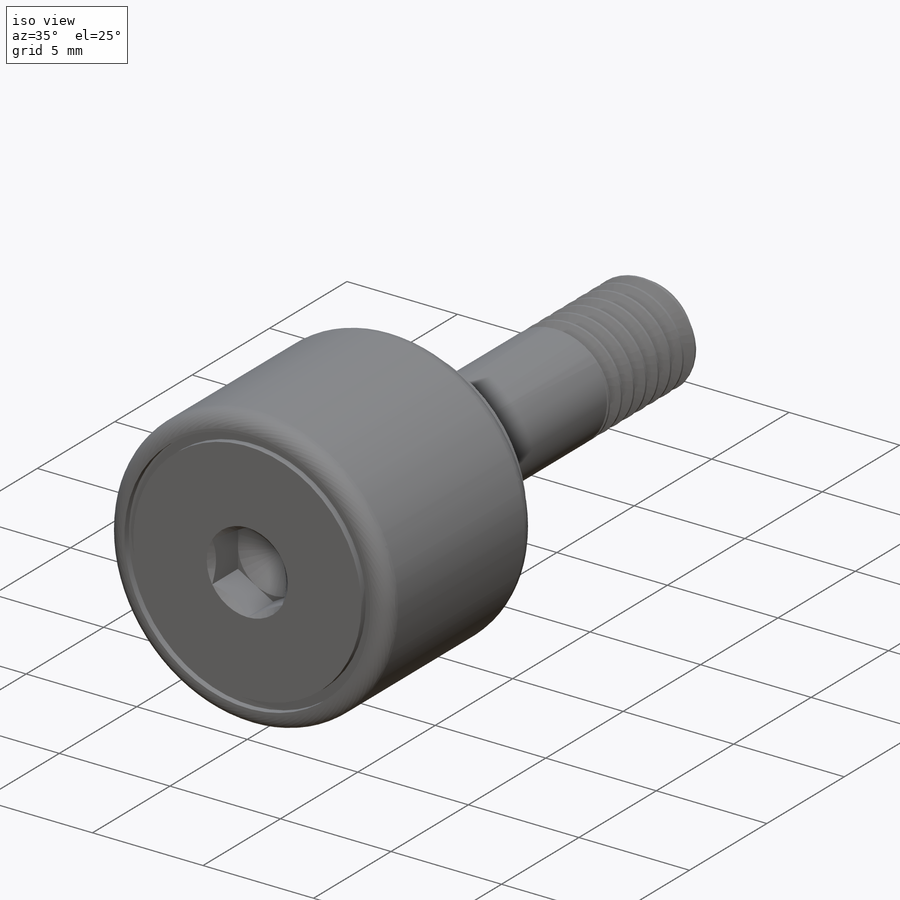
[diagram: iso view]
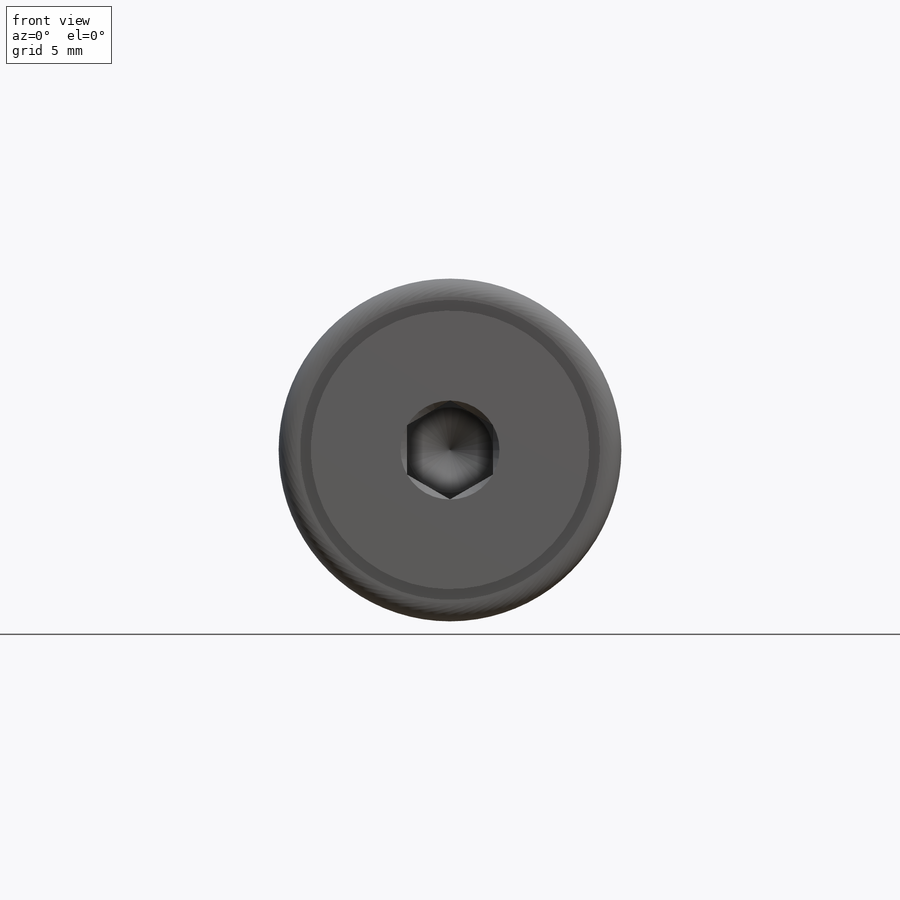
[diagram: front view]
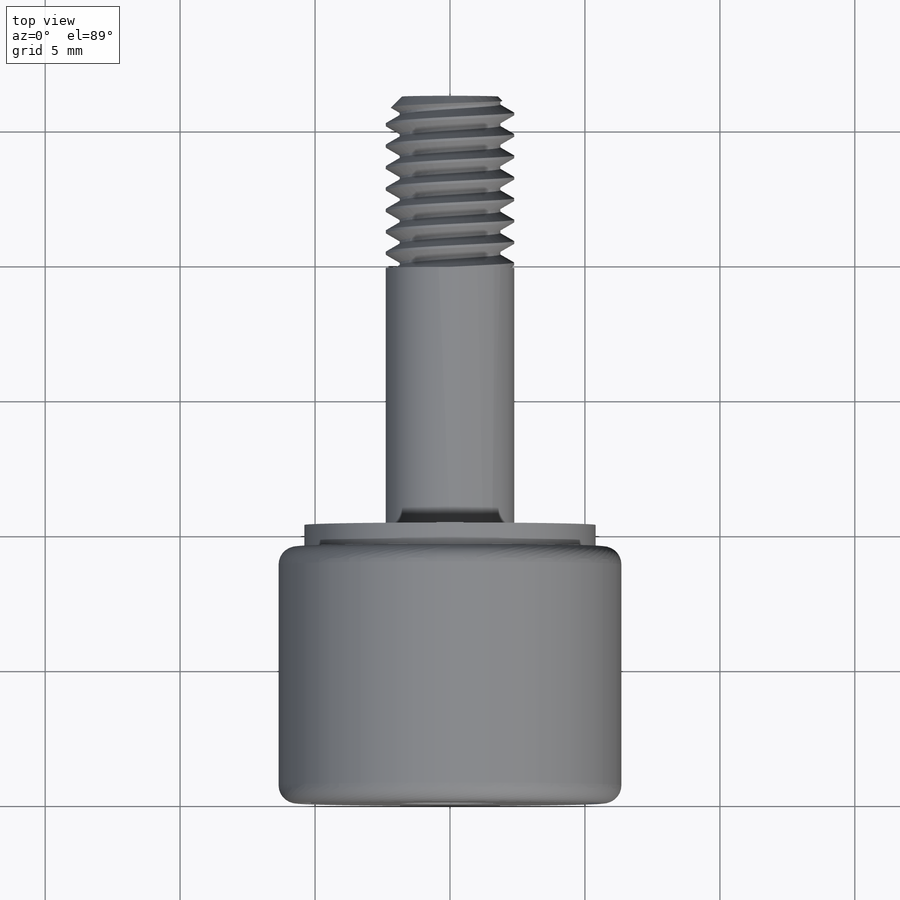
[diagram: top view]
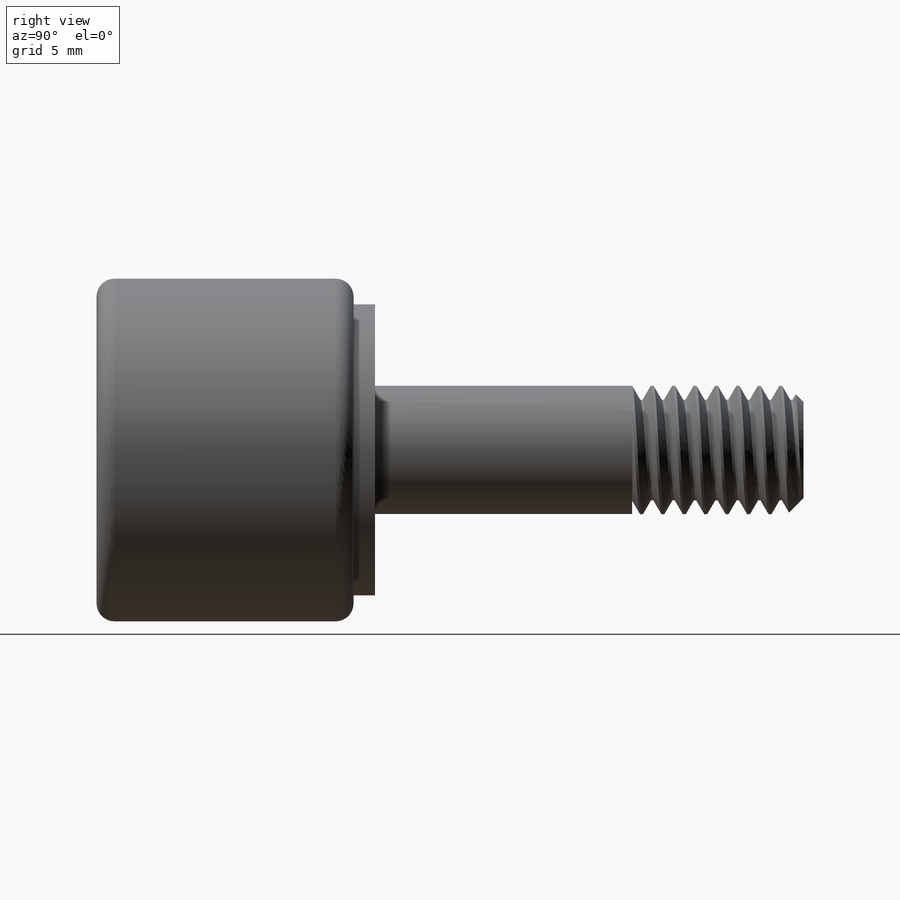
[diagram: right view]
SOLIDWORKS PART (.sldprt)
format: sldprt  version: not decoded by parser v0  size: 589,312 bytes
history: native  units: mm
features: sketch x9, cut_extrude x4, material x1, revolve x1, helix x1, chamfer x1, sweep x1, extrude x1, fillet x1, cut_revolve x1 (+15 scaffold rows collapsed)
feature tree (36):
  scaffold x15  (default folders/planes/origin — collapsed)
  material  "Material <not specified>"
  sketch  "Sketch1"  dims[B=9.525mm A=12.7mm K=~0.79375mm D1=10.795mm D=15.875mm C=4.7625mm E=6.35mm D2=~1.190625mm]
  revolve  "Revolve1"  Angle=360deg
  sketch  "Sketch2"  dims[D1=0.0mm]
  helix  "Helix/Spiral1"  Pitch=7.14375mm
  sketch  "Sketch3"  dims[c1.D1=~1.820652mm c2.D1=60.0deg c2.D2=~0.396875mm c2.D3=~0.099219mm]
  chamfer  "Chamfer1"  Distance=0.595313mm Angle=45deg
  sweep  "Cut-Sweep1"
  sketch  "Sketch4"
  extrude  "Boss-Extrude1"  [1 undecoded]
  sketch  "Sketch5"  dims[D1=11.1125mm D2=~10.31875mm]
  cut_extrude  "Cut-Extrude1"  Depth=0.28575mm
  sketch  "Sketch6"  dims[H Hex=3.175mm]
  cut_extrude  "Cut-Extrude2"  Depth=1.666875mm
  sketch  "Sketch7"
  cut_extrude  "Cut-Extrude3"  [1 undecoded]
  sketch  "Sketch8"
  cut_extrude  "Cut-Extrude4"  [1 undecoded]
  fillet  "Fillet1"  Radius=0.66675mm
  sketch  "Sketch9"  dims[c1.I Radial Hole Dia=1.5529mm c1.J Hole Center Dist=~10.725735mm c1.D3=4.7625mm c1.D1=1.5875mm c1.D2=~0.549741mm c2.D2=60.0deg c2.D4=~0.448284mm c2.D1=0.254mm c3.D2=0.254mm]
  cut_revolve  "Cut-Revolve1"  Angle=360deg
decode coverage: 13 of 20 modeling features carry decoded parameters
note: ~ marks probable driven/reference dimensions
note: 3 parameter values undecoded
summary: no parameter record found for 3 features
note: suppression state not decoded; provenance and decode notes live in map.json
